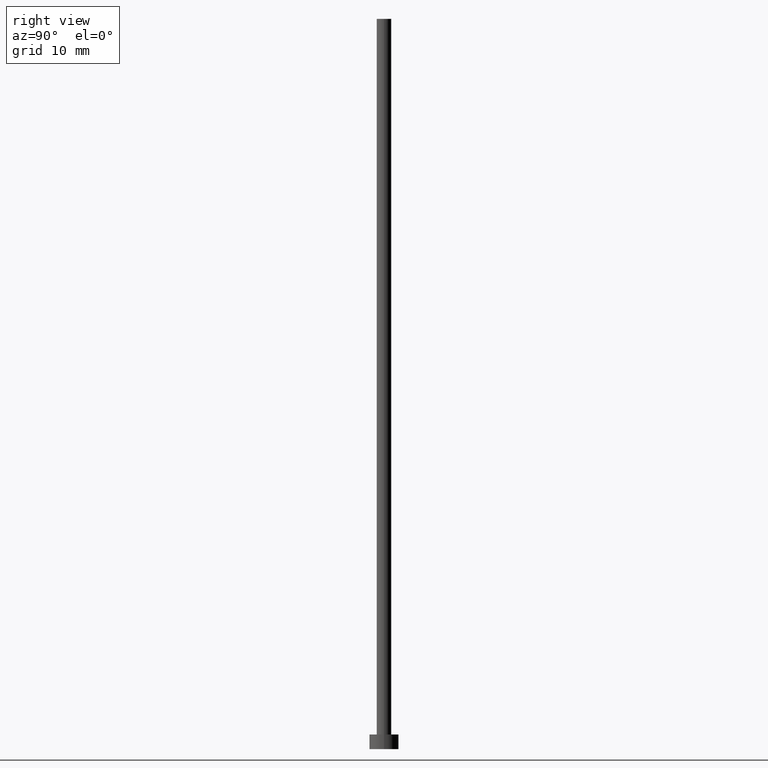
[diagram: clean part render]
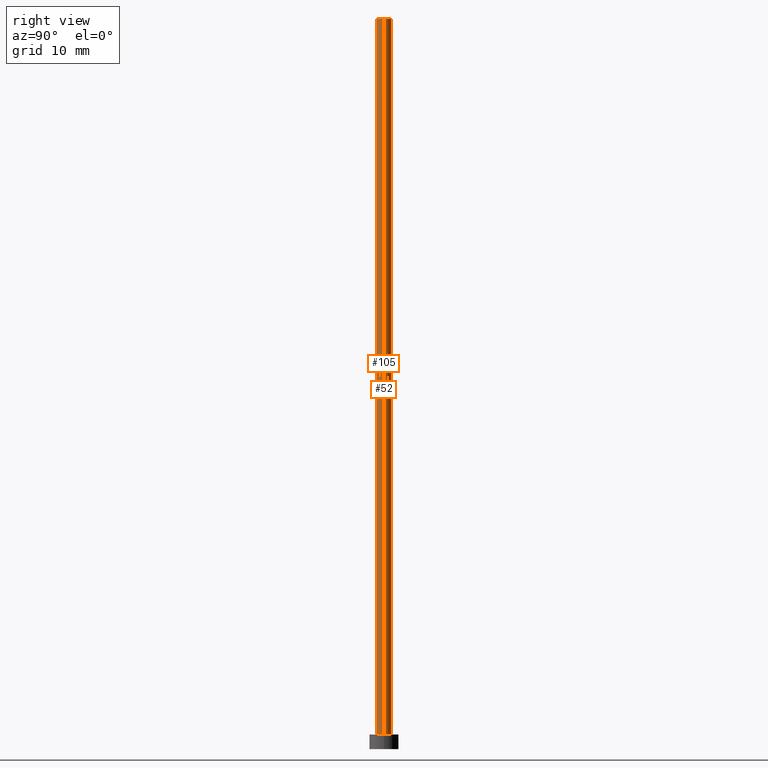
[diagram: same view with one multi-face feature highlighted, each face labeled with its STEP entity id]
A machine part, right view. The highlighted faces form ONE feature: a constant-radius fillet chain: 2 tangent blend faces with common blend radius 1 mm. The faces share edges in the B-rep.
Their STEP definitions:
[1] entity #105 (Cylinder):
#4 = CYLINDRICAL_SURFACE ( 'NONE', #77, 1.000000000000000000 ) ;
#11 = DIRECTION ( 'NONE',  ( 1.000000000000000000, 0.000000000000000000, 0.000000000000000000 ) ) ;
#12 = ORIENTED_EDGE ( 'NONE', *, *, #196, .T. ) ;
#25 = DIRECTION ( 'NONE',  ( 1.000000000000000000, 0.000000000000000000, 0.000000000000000000 ) ) ;
#30 = CARTESIAN_POINT ( 'NONE',  ( -1.000000000000000000, 0.000000000000000000, 2.000000000000000000 ) ) ;
#34 = VERTEX_POINT ( 'NONE', #94 ) ;
#36 = VERTEX_POINT ( 'NONE', #30 ) ;
#38 = CIRCLE ( 'NONE', #124, 1.000000000000000000 ) ;
#39 = DIRECTION ( 'NONE',  ( 0.000000000000000000, 0.000000000000000000, 1.000000000000000000 ) ) ;
#44 = CARTESIAN_POINT ( 'NONE',  ( 1.000000000000000000, 1.224646799147353207E-16, 100.0000000000000000 ) ) ;
#47 = EDGE_CURVE ( 'NONE', #215, #166, #227, .T. ) ;
#49 = LINE ( 'NONE', #134, #67 ) ;
#50 = EDGE_LOOP ( 'NONE', ( #198, #221, #12, #122 ) ) ;
#54 = DIRECTION ( 'NONE',  ( -0.000000000000000000, -0.000000000000000000, -1.000000000000000000 ) ) ;
#67 = VECTOR ( 'NONE', #184, 1000.000000000000000 ) ;
#68 = VECTOR ( 'NONE', #75, 1000.000000000000000 ) ;
#75 = DIRECTION ( 'NONE',  ( -0.000000000000000000, -0.000000000000000000, -1.000000000000000000 ) ) ;
#77 = AXIS2_PLACEMENT_3D ( 'NONE', #153, #54, #136 ) ;
#94 = CARTESIAN_POINT ( 'NONE',  ( -1.000000000000000000, 0.000000000000000000, 100.0000000000000000 ) ) ;
#105 = ADVANCED_FACE ( 'NONE', ( #121 ), #4, .T. ) ;
#113 = CARTESIAN_POINT ( 'NONE',  ( 0.000000000000000000, 0.000000000000000000, 2.000000000000000000 ) ) ;
#121 = FACE_OUTER_BOUND ( 'NONE', #50, .T. ) ;
#122 = ORIENTED_EDGE ( 'NONE', *, *, #137, .T. ) ;
#124 = AXIS2_PLACEMENT_3D ( 'NONE', #202, #39, #25 ) ;
#129 = CARTESIAN_POINT ( 'NONE',  ( 1.000000000000000000, 1.224646799147353207E-16, 2.000000000000000000 ) ) ;
#134 = CARTESIAN_POINT ( 'NONE',  ( -1.000000000000000000, 0.000000000000000000, 100.0000000000000000 ) ) ;
#136 = DIRECTION ( 'NONE',  ( -1.000000000000000000, 0.000000000000000000, 0.000000000000000000 ) ) ;
#137 = EDGE_CURVE ( 'NONE', #36, #166, #155, .T. ) ;
#153 = CARTESIAN_POINT ( 'NONE',  ( 0.000000000000000000, 0.000000000000000000, 100.0000000000000000 ) ) ;
#155 = CIRCLE ( 'NONE', #211, 1.000000000000000000 ) ;
#166 = VERTEX_POINT ( 'NONE', #129 ) ;
#173 = CARTESIAN_POINT ( 'NONE',  ( 1.000000000000000000, 1.224646799147353207E-16, 100.0000000000000000 ) ) ;
#182 = DIRECTION ( 'NONE',  ( 0.000000000000000000, 0.000000000000000000, 1.000000000000000000 ) ) ;
#184 = DIRECTION ( 'NONE',  ( -0.000000000000000000, -0.000000000000000000, -1.000000000000000000 ) ) ;
#196 = EDGE_CURVE ( 'NONE', #34, #36, #49, .T. ) ;
#198 = ORIENTED_EDGE ( 'NONE', *, *, #47, .F. ) ;
#202 = CARTESIAN_POINT ( 'NONE',  ( 0.000000000000000000, 0.000000000000000000, 100.0000000000000000 ) ) ;
#211 = AXIS2_PLACEMENT_3D ( 'NONE', #113, #182, #11 ) ;
#215 = VERTEX_POINT ( 'NONE', #44 ) ;
#221 = ORIENTED_EDGE ( 'NONE', *, *, #255, .F. ) ;
#227 = LINE ( 'NONE', #173, #68 ) ;
#255 = EDGE_CURVE ( 'NONE', #34, #215, #38, .T. ) ;
[2] entity #52 (Cylinder):
#7 = CARTESIAN_POINT ( 'NONE',  ( 0.000000000000000000, 0.000000000000000000, 100.0000000000000000 ) ) ;
#13 = DIRECTION ( 'NONE',  ( -0.000000000000000000, -0.000000000000000000, -1.000000000000000000 ) ) ;
#22 = AXIS2_PLACEMENT_3D ( 'NONE', #63, #66, #108 ) ;
#30 = CARTESIAN_POINT ( 'NONE',  ( -1.000000000000000000, 0.000000000000000000, 2.000000000000000000 ) ) ;
#34 = VERTEX_POINT ( 'NONE', #94 ) ;
#36 = VERTEX_POINT ( 'NONE', #30 ) ;
#44 = CARTESIAN_POINT ( 'NONE',  ( 1.000000000000000000, 1.224646799147353207E-16, 100.0000000000000000 ) ) ;
#47 = EDGE_CURVE ( 'NONE', #215, #166, #227, .T. ) ;
#49 = LINE ( 'NONE', #134, #67 ) ;
#52 = ADVANCED_FACE ( 'NONE', ( #243 ), #190, .T. ) ;
#63 = CARTESIAN_POINT ( 'NONE',  ( 0.000000000000000000, 0.000000000000000000, 2.000000000000000000 ) ) ;
#66 = DIRECTION ( 'NONE',  ( 0.000000000000000000, 0.000000000000000000, 1.000000000000000000 ) ) ;
#67 = VECTOR ( 'NONE', #184, 1000.000000000000000 ) ;
#68 = VECTOR ( 'NONE', #75, 1000.000000000000000 ) ;
#70 = CARTESIAN_POINT ( 'NONE',  ( 0.000000000000000000, 0.000000000000000000, 100.0000000000000000 ) ) ;
#73 = EDGE_LOOP ( 'NONE', ( #146, #144, #245, #217 ) ) ;
#74 = DIRECTION ( 'NONE',  ( -1.000000000000000000, 0.000000000000000000, 0.000000000000000000 ) ) ;
#75 = DIRECTION ( 'NONE',  ( -0.000000000000000000, -0.000000000000000000, -1.000000000000000000 ) ) ;
#94 = CARTESIAN_POINT ( 'NONE',  ( -1.000000000000000000, 0.000000000000000000, 100.0000000000000000 ) ) ;
#97 = AXIS2_PLACEMENT_3D ( 'NONE', #7, #13, #74 ) ;
#108 = DIRECTION ( 'NONE',  ( 1.000000000000000000, 0.000000000000000000, 0.000000000000000000 ) ) ;
#129 = CARTESIAN_POINT ( 'NONE',  ( 1.000000000000000000, 1.224646799147353207E-16, 2.000000000000000000 ) ) ;
#134 = CARTESIAN_POINT ( 'NONE',  ( -1.000000000000000000, 0.000000000000000000, 100.0000000000000000 ) ) ;
#144 = ORIENTED_EDGE ( 'NONE', *, *, #47, .T. ) ;
#146 = ORIENTED_EDGE ( 'NONE', *, *, #151, .F. ) ;
#151 = EDGE_CURVE ( 'NONE', #215, #34, #247, .T. ) ;
#166 = VERTEX_POINT ( 'NONE', #129 ) ;
#172 = DIRECTION ( 'NONE',  ( 0.000000000000000000, 0.000000000000000000, 1.000000000000000000 ) ) ;
#173 = CARTESIAN_POINT ( 'NONE',  ( 1.000000000000000000, 1.224646799147353207E-16, 100.0000000000000000 ) ) ;
#175 = AXIS2_PLACEMENT_3D ( 'NONE', #70, #172, #244 ) ;
#184 = DIRECTION ( 'NONE',  ( -0.000000000000000000, -0.000000000000000000, -1.000000000000000000 ) ) ;
#190 = CYLINDRICAL_SURFACE ( 'NONE', #97, 1.000000000000000000 ) ;
#196 = EDGE_CURVE ( 'NONE', #34, #36, #49, .T. ) ;
#215 = VERTEX_POINT ( 'NONE', #44 ) ;
#217 = ORIENTED_EDGE ( 'NONE', *, *, #196, .F. ) ;
#227 = LINE ( 'NONE', #173, #68 ) ;
#241 = CIRCLE ( 'NONE', #22, 1.000000000000000000 ) ;
#243 = FACE_OUTER_BOUND ( 'NONE', #73, .T. ) ;
#244 = DIRECTION ( 'NONE',  ( 1.000000000000000000, 0.000000000000000000, 0.000000000000000000 ) ) ;
#245 = ORIENTED_EDGE ( 'NONE', *, *, #253, .T. ) ;
#247 = CIRCLE ( 'NONE', #175, 1.000000000000000000 ) ;
#253 = EDGE_CURVE ( 'NONE', #166, #36, #241, .T. ) ;